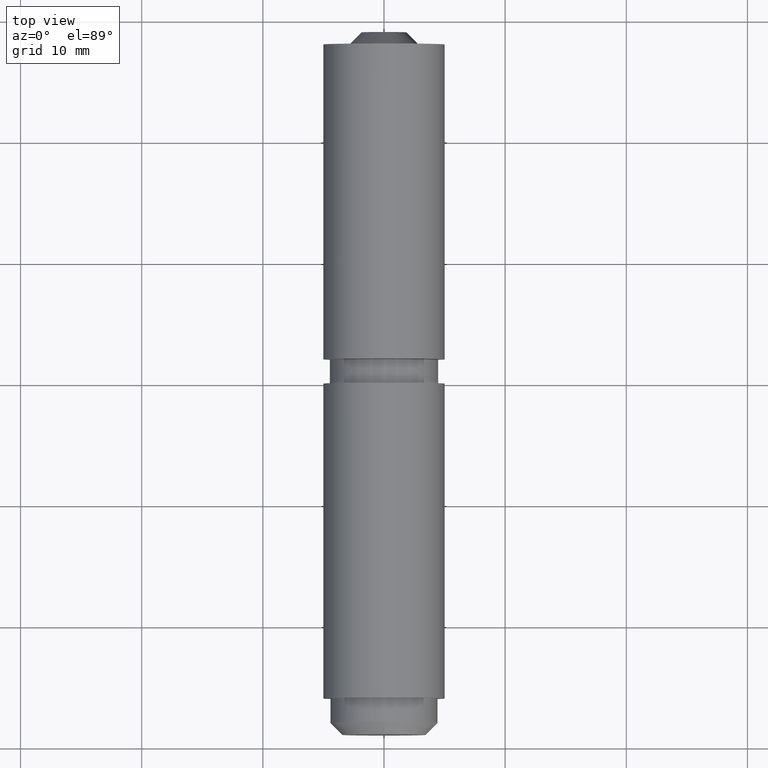
[diagram: clean part render]
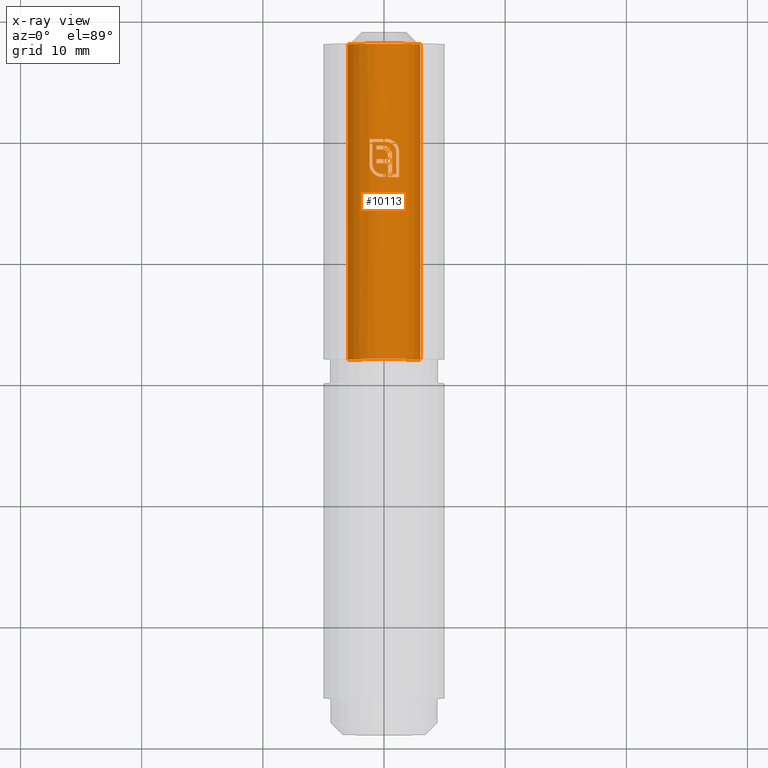
[diagram: x-ray — body ghosted, one internal face saturated and labeled with its STEP entity id]
A machine part, top view, then the same camera in x-ray: the body is ghosted and one INTERNAL B-rep face — a face not visible from any outside direction — is saturated and labeled: STEP entity #10113.
In plain terms, the highlighted cylindrical surface (edge-blend (fillet) strip) has radius 3 mm, axis along (-0, -1, -0).
Its self-contained STEP definition (entity closure, byte-faithful):
#47 = CARTESIAN_POINT ( 'NONE',  ( 0.6119098723146363383, 4.102196140564652538, 2.936931444239698763 ) ) ;
#59 = CARTESIAN_POINT ( 'NONE',  ( -0.8377652576694585296, 2.264291217246041654, 2.880880769550227427 ) ) ;
#89 = CARTESIAN_POINT ( 'NONE',  ( 0.6119098723146363383, 4.102196140564652538, 2.936931444239698763 ) ) ;
#104 = CARTESIAN_POINT ( 'NONE',  ( 0.6684136170824095391, 2.247203883359007115, 2.924589413319217179 ) ) ;
#215 = ORIENTED_EDGE ( 'NONE', *, *, #14262, .F. ) ;
#223 = EDGE_CURVE ( 'NONE', #4420, #1349, #5664, .T. ) ;
#251 = CARTESIAN_POINT ( 'NONE',  ( 1.820000000000000950, 12.99999999999999822, -2.384868969146941797 ) ) ;
#343 = CARTESIAN_POINT ( 'NONE',  ( -0.9123952173641571850, 2.798793251009787930, 2.857973957792982578 ) ) ;
#421 = ORIENTED_EDGE ( 'NONE', *, *, #2515, .F. ) ;
#465 = CIRCLE ( 'NONE', #12480, 3.000000000000000000 ) ;
#499 = VERTEX_POINT ( 'NONE', #89 ) ;
#524 = ORIENTED_EDGE ( 'NONE', *, *, #12877, .F. ) ;
#533 = CARTESIAN_POINT ( 'NONE',  ( 1.209693808437329432, 4.375083544272649227, 2.745294317523785388 ) ) ;
#579 = EDGE_CURVE ( 'NONE', #2757, #14552, #10061, .T. ) ;
#588 = CARTESIAN_POINT ( 'NONE',  ( 0.1829950824865384518, 5.146873330759728304, 2.994413598650952135 ) ) ;
#597 = CARTESIAN_POINT ( 'NONE',  ( 0.9872881831913479234, 4.784054523105190526, 2.833042408866309536 ) ) ;
#625 = CIRCLE ( 'NONE', #8288, 3.000000000000000000 ) ;
#646 = CARTESIAN_POINT ( 'NONE',  ( 0.1521748580677528551, 4.552941922689394794, 2.996137982899328644 ) ) ;
#681 = CARTESIAN_POINT ( 'NONE',  ( 0.9233765877532680300, 4.444806820686928894, 2.854445851953629543 ) ) ;
#701 = ORIENTED_EDGE ( 'NONE', *, *, #4432, .F. ) ;
#752 = ORIENTED_EDGE ( 'NONE', *, *, #12543, .F. ) ;
#793 = CARTESIAN_POINT ( 'NONE',  ( -0.1543570656487464332, 2.000416466809380900, 2.996133348181233114 ) ) ;
#803 = CARTESIAN_POINT ( 'NONE',  ( 0.6119098723146363383, 4.102196140564652538, 2.936931444239698763 ) ) ;
#901 = CARTESIAN_POINT ( 'NONE',  ( -0.2301047678639574212, 2.004140367723847849, 2.991269190449263871 ) ) ;
#916 = AXIS2_PLACEMENT_3D ( 'NONE', #9367, #8113, #7126 ) ;
#953 = CARTESIAN_POINT ( 'NONE',  ( -0.3547583019689007355, 2.024181050645404323, 2.978950578170799002 ) ) ;
#954 = DIRECTION ( 'NONE',  ( 0.000000000000000000, 1.000000000000000000, 0.000000000000000000 ) ) ;
#968 = EDGE_CURVE ( 'NONE', #13454, #8382, #3478, .T. ) ;
#981 = DIRECTION ( 'NONE',  ( 1.000000000000000000, -2.977941967093519056E-14, 2.842170943040400743E-14 ) ) ;
#993 = ORIENTED_EDGE ( 'NONE', *, *, #8486, .F. ) ;
#1035 = VERTEX_POINT ( 'NONE', #2330 ) ;
#1048 = CARTESIAN_POINT ( 'NONE',  ( 0.000000000000000000, 12.99999999999999822, 0.000000000000000000 ) ) ;
#1053 = CARTESIAN_POINT ( 'NONE',  ( 0.3238685990032738049, 3.812833101611519560, 2.982466953811836685 ) ) ;
#1136 = VERTEX_POINT ( 'NONE', #4998 ) ;
#1174 = EDGE_CURVE ( 'NONE', #3873, #5372, #10230, .T. ) ;
#1215 = CARTESIAN_POINT ( 'NONE',  ( 1.820000000000000950, 12.99999999999999822, -2.384868969146941797 ) ) ;
#1225 = CARTESIAN_POINT ( 'NONE',  ( 0.1001657293610717370, 12.99999999999999822, 2.998327338143979670 ) ) ;
#1349 = VERTEX_POINT ( 'NONE', #10482 ) ;
#1354 = CARTESIAN_POINT ( 'NONE',  ( -0.9514569797477718804, 3.011999671936735901, 2.845124215331875650 ) ) ;
#1374 = EDGE_CURVE ( 'NONE', #4502, #14170, #7379, .T. ) ;
#1388 = CARTESIAN_POINT ( 'NONE',  ( -0.6928129614139485470, 2.160522002181170187, 2.918905651181077587 ) ) ;
#1448 = CARTESIAN_POINT ( 'NONE',  ( 0.3216860923710732623, 12.99999999999999822, 2.982703146136910899 ) ) ;
#1567 = EDGE_CURVE ( 'NONE', #499, #12555, #13440, .T. ) ;
#1591 = CARTESIAN_POINT ( 'NONE',  ( 1.092833790849434772, 4.639623803867225504, 2.793870846259299157 ) ) ;
#1609 = VERTEX_POINT ( 'NONE', #9013 ) ;
#1632 = VERTEX_POINT ( 'NONE', #104 ) ;
#1636 = CARTESIAN_POINT ( 'NONE',  ( -0.5417831352854403093, 2.352657058122850753, 2.951023859527107884 ) ) ;
#1683 = CARTESIAN_POINT ( 'NONE',  ( 0.008756571312495988607, 4.259605376365418472, 3.000042498754934783 ) ) ;
#1742 = CARTESIAN_POINT ( 'NONE',  ( 0.000000000000000000, 4.288401663094819405, 0.000000000000000000 ) ) ;
#1767 = CARTESIAN_POINT ( 'NONE',  ( -0.9528586049474331299, 13.00000000000000533, 2.844654720520159774 ) ) ;
#1780 = CARTESIAN_POINT ( 'NONE',  ( -1.198671886259904396, 3.020436782565512512, 2.750125090109138970 ) ) ;
#1806 = EDGE_CURVE ( 'NONE', #1609, #4591, #12696, .T. ) ;
#1813 = DIRECTION ( 'NONE',  ( -0.000000000000000000, -1.000000000000000000, -0.000000000000000000 ) ) ;
#1818 = DIRECTION ( 'NONE',  ( 0.000000000000000000, 0.000000000000000000, -1.000000000000000000 ) ) ;
#1841 = CARTESIAN_POINT ( 'NONE',  ( -1.820000000000000062, -12.99999999999999822, -2.384868969146942685 ) ) ;
#1842 = CARTESIAN_POINT ( 'NONE',  ( -1.200062488306459452, 12.99999999999999822, 2.749518143995363317 ) ) ;
#1845 = EDGE_CURVE ( 'NONE', #3848, #13389, #7543, .T. ) ;
#1875 = CARTESIAN_POINT ( 'NONE',  ( -1.197289643114975100, 2.974364907740473019, 2.750732865563337182 ) ) ;
#1877 = AXIS2_PLACEMENT_3D ( 'NONE', #11584, #9403, #12716 ) ;
#1893 = CARTESIAN_POINT ( 'NONE',  ( 0.02696769636643687323, 4.253728910623685522, 2.999878788110060590 ) ) ;
#1912 = CARTESIAN_POINT ( 'NONE',  ( 0.000000000000000000, 2.247203883359007115, 0.000000000000000000 ) ) ;
#1931 = DIRECTION ( 'NONE',  ( 0.000000000000000000, 1.000000000000000000, 0.000000000000000000 ) ) ;
#1934 = CARTESIAN_POINT ( 'NONE',  ( -0.4282727018193733803, 2.043661984593277303, 2.969273057985124087 ) ) ;
#1979 = ORIENTED_EDGE ( 'NONE', *, *, #14460, .F. ) ;
#1989 = DIRECTION ( 'NONE',  ( 0.000000000000000000, 1.000000000000000000, 0.000000000000000000 ) ) ;
#2038 = CARTESIAN_POINT ( 'NONE',  ( 0.08624978100821671656, 4.572650278638377586, 2.998947377026147443 ) ) ;
#2039 = CARTESIAN_POINT ( 'NONE',  ( 0.6684136170824095391, 3.703459487146620877, 2.924589413319210962 ) ) ;
#2087 = CARTESIAN_POINT ( 'NONE',  ( -0.2549089394637050754, 4.609445667457169549, 2.989150620591322749 ) ) ;
#2129 = CARTESIAN_POINT ( 'NONE',  ( 0.5563662867071075269, 4.229933426002630448, 2.947993934956233630 ) ) ;
#2148 = DIRECTION ( 'NONE',  ( -0.000000000000000000, -1.000000000000000000, -0.000000000000000000 ) ) ;
#2153 = VERTEX_POINT ( 'NONE', #14610 ) ;
#2156 = CARTESIAN_POINT ( 'NONE',  ( -0.2549089394637050754, 4.609445667457169549, 2.989150620591322749 ) ) ;
#2166 = CARTESIAN_POINT ( 'NONE',  ( 0.7251240748225272759, 4.694632925975165350, 2.911316723034566678 ) ) ;
#2167 = CARTESIAN_POINT ( 'NONE',  ( 0.6310258041582972321, 5.051248535474863743, 2.933195452423586591 ) ) ;
#2207 = VERTEX_POINT ( 'NONE', #14563 ) ;
#2246 = EDGE_CURVE ( 'NONE', #12722, #9822, #14113, .T. ) ;
#2274 = CARTESIAN_POINT ( 'NONE',  ( 0.4385461099589678668, 4.384072776394798865, 2.967773122972821476 ) ) ;
#2329 = CARTESIAN_POINT ( 'NONE',  ( -0.9528586049474511155, 3.066508182491718859, 2.844654720520159774 ) ) ;
#2330 = CARTESIAN_POINT ( 'NONE',  ( 1.253355793030608956, 1.999999999999994893, 2.725637403631783862 ) ) ;
#2337 = CARTESIAN_POINT ( 'NONE',  ( -0.9616355343674479750, 2.393159377310473790, 2.841836575667926912 ) ) ;
#2376 = DIRECTION ( 'NONE',  ( -1.000000000000000000, 1.546795099412652887E-14, -1.243449787580175325E-14 ) ) ;
#2395 = LINE ( 'NONE', #1448, #9107 ) ;
#2448 = VECTOR ( 'NONE', #6004, 1000.000000000000000 ) ;
#2463 = FACE_BOUND ( 'NONE', #3729, .T. ) ;
#2515 = EDGE_CURVE ( 'NONE', #13152, #4480, #3083, .T. ) ;
#2516 = ORIENTED_EDGE ( 'NONE', *, *, #6592, .F. ) ;
#2570 = AXIS2_PLACEMENT_3D ( 'NONE', #11630, #4843, #3805 ) ;
#2591 = ORIENTED_EDGE ( 'NONE', *, *, #968, .F. ) ;
#2604 = EDGE_CURVE ( 'NONE', #3915, #5309, #465, .T. ) ;
#2646 = CARTESIAN_POINT ( 'NONE',  ( -1.200062488306459452, 5.146873330759742515, 2.749518143995363317 ) ) ;
#2653 = AXIS2_PLACEMENT_3D ( 'NONE', #10962, #12072, #4081 ) ;
#2656 = CARTESIAN_POINT ( 'NONE',  ( -1.820000000000000062, 12.99999999999999822, -2.384868969146942685 ) ) ;
#2713 = ORIENTED_EDGE ( 'NONE', *, *, #12069, .F. ) ;
#2727 = ORIENTED_EDGE ( 'NONE', *, *, #5338, .F. ) ;
#2757 = VERTEX_POINT ( 'NONE', #2646 ) ;
#2777 = VECTOR ( 'NONE', #1989, 1000.000000000000000 ) ;
#2809 = CARTESIAN_POINT ( 'NONE',  ( 1.252502070515181032, 4.130394476076738819, 2.726029978982756230 ) ) ;
#2865 = CARTESIAN_POINT ( 'NONE',  ( -0.1290596897536647192, 2.247203883359007115, 2.997222647131954965 ) ) ;
#2877 = ORIENTED_EDGE ( 'NONE', *, *, #10317, .F. ) ;
#2912 = CARTESIAN_POINT ( 'NONE',  ( -1.186621281242149273, 2.882778280774473512, 2.755351832725525973 ) ) ;
#2962 = VERTEX_POINT ( 'NONE', #251 ) ;
#2967 = DIRECTION ( 'NONE',  ( -0.000000000000000000, -1.000000000000000000, -0.000000000000000000 ) ) ;
#3037 = DIRECTION ( 'NONE',  ( 0.000000000000000000, 1.000000000000000000, 0.000000000000000000 ) ) ;
#3041 = DIRECTION ( 'NONE',  ( 2.979806390163168756E-14, 1.000000000000000000, 0.000000000000000000 ) ) ;
#3048 = CARTESIAN_POINT ( 'NONE',  ( 0.3216860923710733178, 2.247203883359007115, 2.982703146136910899 ) ) ;
#3083 = B_SPLINE_CURVE_WITH_KNOTS ( 'NONE', 3,
 ( #533, #3959, #9585, #9771, #2809, #7394 ),
 .UNSPECIFIED., .F., .F.,
 ( 4, 2, 4 ),
 ( 0.000000000000000000, 0.0001496456854292651118, 0.0002992913708585302236 ),
 .UNSPECIFIED. ) ;
#3159 = CARTESIAN_POINT ( 'NONE',  ( 1.141600833241961377, 4.556813562494748560, 2.774382490623152009 ) ) ;
#3164 = CARTESIAN_POINT ( 'NONE',  ( 0.1521748580677528551, 4.552941922689394794, 2.996137982899328644 ) ) ;
#3227 = EDGE_CURVE ( 'NONE', #5372, #499, #10130, .T. ) ;
#3260 = CARTESIAN_POINT ( 'NONE',  ( -0.2552406976392543325, 2.007060110965222410, 2.989227564943450766 ) ) ;
#3312 = CARTESIAN_POINT ( 'NONE',  ( 0.5121080073849872960, 4.300713408647000691, 2.956020603595695295 ) ) ;
#3393 = ORIENTED_EDGE ( 'NONE', *, *, #1374, .F. ) ;
#3446 = CARTESIAN_POINT ( 'NONE',  ( 1.209693808437329432, 4.375083544272649227, 2.745294317523785388 ) ) ;
#3458 = CARTESIAN_POINT ( 'NONE',  ( 0.5925705449945325443, 4.154870999267416209, 2.940917949205164472 ) ) ;
#3478 = B_SPLINE_CURVE_WITH_KNOTS ( 'NONE', 3,
 ( #12219, #14619, #12269, #1053, #14574, #7810, #6591, #12169, #11057, #8809 ),
 .UNSPECIFIED., .F., .F.,
 ( 4, 3, 3, 4 ),
 ( 0.000000000000000000, 5.738907785576576162E-05, 0.0001148596289498291813, 0.0002293533855962741601 ),
 .UNSPECIFIED. ) ;
#3554 = CARTESIAN_POINT ( 'NONE',  ( -0.6279620725327086372, 13.00000000000000533, 2.933541142622755782 ) ) ;
#3559 = VECTOR ( 'NONE', #1931, 1000.000000000000000 ) ;
#3592 = VECTOR ( 'NONE', #1813, 1000.000000000000000 ) ;
#3600 = VERTEX_POINT ( 'NONE', #9894 ) ;
#3615 = CARTESIAN_POINT ( 'NONE',  ( -0.9479532311685632262, 2.957700599156627419, 2.846314065036802621 ) ) ;
#3648 = ORIENTED_EDGE ( 'NONE', *, *, #11813, .F. ) ;
#3652 = CARTESIAN_POINT ( 'NONE',  ( 0.3255386204234211878, 2.247203883359007115, 2.982285131675510126 ) ) ;
#3653 = CARTESIAN_POINT ( 'NONE',  ( 0.000000000000000000, 5.146873330759728304, 0.000000000000000000 ) ) ;
#3664 = CARTESIAN_POINT ( 'NONE',  ( 0.3255386204234211878, 3.755468615853317704, 2.982285131675509682 ) ) ;
#3710 = B_SPLINE_CURVE_WITH_KNOTS ( 'NONE', 3,
 ( #2087, #5650, #6789, #6692, #12220, #2038, #9971, #3164 ),
 .UNSPECIFIED., .F., .F.,
 ( 4, 2, 2, 4 ),
 ( 5.421010862427515550E-20, 0.0002067635739661120777, 0.0003101453609491679132, 0.0004135271479322237217 ),
 .UNSPECIFIED. ) ;
#3729 = EDGE_LOOP ( 'NONE', ( #12485, #11015, #13125, #4449, #752, #12680, #3828, #7457, #7937, #8515, #8316, #7732, #14035, #3648, #7271, #6189, #3393, #9521, #6929, #8537, #10475, #9366, #2713, #6589, #1979, #4893, #2516, #4725, #8851, #2591, #11328, #2727, #993, #4464, #8722, #2877, #701, #7807, #524, #421, #215, #13257 ) ) ;
#3805 = DIRECTION ( 'NONE',  ( 0.000000000000000000, 0.000000000000000000, -1.000000000000000000 ) ) ;
#3806 = CIRCLE ( 'NONE', #916, 3.000000000000000000 ) ;
#3809 = EDGE_CURVE ( 'NONE', #14066, #8850, #625, .T. ) ;
#3828 = ORIENTED_EDGE ( 'NONE', *, *, #14286, .F. ) ;
#3848 = VERTEX_POINT ( 'NONE', #4093 ) ;
#3855 = DIRECTION ( 'NONE',  ( 1.000000000000000000, -2.139492287038062188E-14, 7.105427357601001859E-15 ) ) ;
#3864 = CARTESIAN_POINT ( 'NONE',  ( -0.7101493376495157106, 2.485418534595863704, 2.914736337687501955 ) ) ;
#3873 = VERTEX_POINT ( 'NONE', #6556 ) ;
#3876 = CARTESIAN_POINT ( 'NONE',  ( 0.1829950824865384518, 4.899669447400730071, 2.994413598650951691 ) ) ;
#3915 = VERTEX_POINT ( 'NONE', #13339 ) ;
#3929 = VECTOR ( 'NONE', #14684, 1000.000000000000000 ) ;
#3959 = CARTESIAN_POINT ( 'NONE',  ( 1.223372317538443443, 4.327397774661563723, 2.739266982799545502 ) ) ;
#4023 = CARTESIAN_POINT ( 'NONE',  ( 0.4385461099589678668, 4.384072776394798865, 2.967773122972821476 ) ) ;
#4076 = DIRECTION ( 'NONE',  ( -0.000000000000000000, -1.000000000000000000, -0.000000000000000000 ) ) ;
#4081 = DIRECTION ( 'NONE',  ( 0.000000000000000000, 0.000000000000000000, -1.000000000000000000 ) ) ;
#4093 = CARTESIAN_POINT ( 'NONE',  ( -0.1984051946959317081, 4.288401663094819405, 2.993432040103410685 ) ) ;
#4123 = VERTEX_POINT ( 'NONE', #12546 ) ;
#4157 = DIRECTION ( 'NONE',  ( 0.000000000000000000, 0.000000000000000000, 1.000000000000000000 ) ) ;
#4161 = CARTESIAN_POINT ( 'NONE',  ( 1.006151909671600730, 2.247203883359007115, 2.826244563845137669 ) ) ;
#4198 = CARTESIAN_POINT ( 'NONE',  ( 1.004760314566674140, 4.134661926586784553, 2.826739976057592418 ) ) ;
#4244 = DIRECTION ( 'NONE',  ( -0.000000000000000000, -1.000000000000000000, -0.000000000000000000 ) ) ;
#4411 = CARTESIAN_POINT ( 'NONE',  ( 0.7114335136669645010, 5.008182320875207871, 2.914423160014941061 ) ) ;
#4415 = CARTESIAN_POINT ( 'NONE',  ( 1.180749293169532255, 4.468184987503099670, 2.757948834444669206 ) ) ;
#4420 = VERTEX_POINT ( 'NONE', #5994 ) ;
#4423 = EDGE_CURVE ( 'NONE', #1035, #1136, #3806, .T. ) ;
#4432 = EDGE_CURVE ( 'NONE', #1136, #6776, #2395, .T. ) ;
#4449 = ORIENTED_EDGE ( 'NONE', *, *, #6500, .F. ) ;
#4464 = ORIENTED_EDGE ( 'NONE', *, *, #2246, .F. ) ;
#4468 = CARTESIAN_POINT ( 'NONE',  ( 0.4578925796591522546, 4.364113353764206948, 2.964914306386479570 ) ) ;
#4480 = VERTEX_POINT ( 'NONE', #6291 ) ;
#4502 = VERTEX_POINT ( 'NONE', #4161 ) ;
#4591 = VERTEX_POINT ( 'NONE', #1841 ) ;
#4668 = B_SPLINE_CURVE_WITH_KNOTS ( 'NONE', 3,
 ( #11194, #12158, #3159, #4415, #12312, #5538 ),
 .UNSPECIFIED., .F., .F.,
 ( 4, 2, 4 ),
 ( 0.000000000000000000, 0.0001469652186039428494, 0.0002939304372078856988 ),
 .UNSPECIFIED. ) ;
#4694 = CARTESIAN_POINT ( 'NONE',  ( 0.6851026435369763634, 4.730407971658794786, 2.921080204366434341 ) ) ;
#4698 = LINE ( 'NONE', #3554, #11245 ) ;
#4725 = ORIENTED_EDGE ( 'NONE', *, *, #223, .F. ) ;
#4728 = LINE ( 'NONE', #12822, #7891 ) ;
#4765 = CARTESIAN_POINT ( 'NONE',  ( -0.9272212539379542928, 2.850566093122369971, 2.853135088206475434 ) ) ;
#4834 = CARTESIAN_POINT ( 'NONE',  ( -0.5209688137775781991, 2.072450519546090053, 2.954763493176401301 ) ) ;
#4843 = DIRECTION ( 'NONE',  ( -0.000000000000000000, 1.000000000000000000, 0.000000000000000000 ) ) ;
#4846 = CARTESIAN_POINT ( 'NONE',  ( -0.8705490543984857332, 2.700089632364623959, 2.870997129914582668 ) ) ;
#4893 = ORIENTED_EDGE ( 'NONE', *, *, #1845, .F. ) ;
#4949 = DIRECTION ( 'NONE',  ( -0.000000000000000000, -1.000000000000000000, -0.000000000000000000 ) ) ;
#4962 = CARTESIAN_POINT ( 'NONE',  ( 0.000000000000000000, 4.899669447400730071, 0.000000000000000000 ) ) ;
#4972 = CARTESIAN_POINT ( 'NONE',  ( -0.6279620725327543784, 4.609445667457169549, 2.933541142622755782 ) ) ;
#4992 = CARTESIAN_POINT ( 'NONE',  ( -0.6714124317102144746, 2.448279520953268840, 2.924174237006110566 ) ) ;
#4998 = CARTESIAN_POINT ( 'NONE',  ( 0.3216860923710733178, 1.999999999999994893, 2.982703146136911343 ) ) ;
#5038 = CARTESIAN_POINT ( 'NONE',  ( -0.3438841838329733114, 2.271030925239722720, 2.980704209424413609 ) ) ;
#5043 = VERTEX_POINT ( 'NONE', #8287 ) ;
#5178 = CARTESIAN_POINT ( 'NONE',  ( -1.177346841308212433, 2.837869168361856875, 2.759350323595036958 ) ) ;
#5223 = CARTESIAN_POINT ( 'NONE',  ( -1.082901955422192808, 2.581865651234309667, 2.797830095093282843 ) ) ;
#5246 = CARTESIAN_POINT ( 'NONE',  ( -0.6928129614139485470, 2.160522002181170187, 2.918905651181077587 ) ) ;
#5285 = B_SPLINE_CURVE_WITH_KNOTS ( 'NONE', 3,
 ( #9500, #6131, #6244, #12919, #597, #11918, #10708, #1591 ),
 .UNSPECIFIED., .F., .F.,
 ( 4, 2, 2, 4 ),
 ( 0.000000000000000000, 0.0002738938893260503982, 0.0004108408339890755974, 0.0005477877786521007965 ),
 .UNSPECIFIED. ) ;
#5291 = CARTESIAN_POINT ( 'NONE',  ( -0.7302897287612164501, 2.185016205109694631, 2.910010403004907875 ) ) ;
#5309 = VERTEX_POINT ( 'NONE', #13167 ) ;
#5338 = EDGE_CURVE ( 'NONE', #10121, #5043, #9080, .T. ) ;
#5354 = VERTEX_POINT ( 'NONE', #11937 ) ;
#5364 = AXIS2_PLACEMENT_3D ( 'NONE', #9143, #8099, #2376 ) ;
#5372 = VERTEX_POINT ( 'NONE', #9751 ) ;
#5376 = CARTESIAN_POINT ( 'NONE',  ( -0.06557531111153956649, 4.278026302705921324, 2.999343149999750935 ) ) ;
#5405 = CARTESIAN_POINT ( 'NONE',  ( 0.2098489267423048754, 4.125547565194677802, 2.992740307606163164 ) ) ;
#5421 = CARTESIAN_POINT ( 'NONE',  ( 0.5035495202727986452, 5.100909725981725096, 2.957784275785524830 ) ) ;
#5457 = FACE_OUTER_BOUND ( 'NONE', #8929, .T. ) ;
#5476 = CARTESIAN_POINT ( 'NONE',  ( -0.1604060654722307966, 4.287856023375371528, 2.995950628977620323 ) ) ;
#5538 = CARTESIAN_POINT ( 'NONE',  ( 1.209693808437329432, 4.375083544272649227, 2.745294317523785388 ) ) ;
#5542 = CARTESIAN_POINT ( 'NONE',  ( 0.6022488441144143723, 4.128508529876934396, 2.938944320142547806 ) ) ;
#5638 = EDGE_CURVE ( 'NONE', #9371, #4123, #8031, .T. ) ;
#5643 = CARTESIAN_POINT ( 'NONE',  ( 0.5276107165807987220, 4.277399984402155297, 2.953276595647525316 ) ) ;
#5650 = CARTESIAN_POINT ( 'NONE',  ( -0.1862242024850685185, 4.608670817835442080, 2.995007921103367110 ) ) ;
#5663 = CARTESIAN_POINT ( 'NONE',  ( 0.05685022120099954279, 4.242006757540709216, 2.999610156304139075 ) ) ;
#5664 = B_SPLINE_CURVE_WITH_KNOTS ( 'NONE', 3,
 ( #10594, #11120, #7726, #12431, #5663, #1893 ),
 .UNSPECIFIED., .F., .F.,
 ( 4, 2, 4 ),
 ( 0.000000000000000000, 9.651774584029350823E-05, 0.0001930354916805869622 ),
 .UNSPECIFIED. ) ;
#5669 = VERTEX_POINT ( 'NONE', #2656 ) ;
#5700 = CARTESIAN_POINT ( 'NONE',  ( -1.061371478421925030, 2.541922279363638459, 2.805974088403607514 ) ) ;
#5712 = CARTESIAN_POINT ( 'NONE',  ( -0.9528586049474511155, 3.066508182491718859, 2.844654720520159774 ) ) ;
#5771 = CARTESIAN_POINT ( 'NONE',  ( 0.2920374603895630194, 4.894792077649273487, 2.986235469212906946 ) ) ;
#5793 = CIRCLE ( 'NONE', #10374, 3.000000000000000000 ) ;
#5907 = VERTEX_POINT ( 'NONE', #9241 ) ;
#5965 = CARTESIAN_POINT ( 'NONE',  ( 0.1829950824865384518, 4.899669447400730071, 2.994413598650951691 ) ) ;
#5986 = CARTESIAN_POINT ( 'NONE',  ( -0.7473278404402844410, 2.524267836486113303, 2.905678129303345347 ) ) ;
#5994 = CARTESIAN_POINT ( 'NONE',  ( 0.1868476105388863495, 4.149710653210285649, 2.994175674611613047 ) ) ;
#6004 = DIRECTION ( 'NONE',  ( 0.000000000000000000, 1.000000000000000000, 0.000000000000000000 ) ) ;
#6040 = VERTEX_POINT ( 'NONE', #12941 ) ;
#6060 = CIRCLE ( 'NONE', #2570, 3.000000000000000000 ) ;
#6107 = EDGE_CURVE ( 'NONE', #5907, #9371, #13511, .T. ) ;
#6131 = CARTESIAN_POINT ( 'NONE',  ( 0.7872158907695148145, 4.960415367360521799, 2.895924088378471151 ) ) ;
#6134 = CARTESIAN_POINT ( 'NONE',  ( 0.2573304543014711121, 4.513186783589111961, 2.989338932855853948 ) ) ;
#6182 = CARTESIAN_POINT ( 'NONE',  ( 0.02696769636643687323, 4.253728910623685522, 2.999878788110060590 ) ) ;
#6189 = ORIENTED_EDGE ( 'NONE', *, *, #14647, .F. ) ;
#6194 = CARTESIAN_POINT ( 'NONE',  ( -0.6279620725327542674, 3.144200831547420805, 2.933541142622746456 ) ) ;
#6226 = EDGE_CURVE ( 'NONE', #5354, #7498, #7179, .T. ) ;
#6232 = CARTESIAN_POINT ( 'NONE',  ( -0.009489194966240692766, 4.265485006221549469, 3.000042538743693754 ) ) ;
#6238 = CARTESIAN_POINT ( 'NONE',  ( -0.1834504257179344344, 2.248697005663758297, 2.994880595060609885 ) ) ;
#6244 = CARTESIAN_POINT ( 'NONE',  ( 0.8607794669254750231, 4.909761583435052756, 2.874649816877568487 ) ) ;
#6291 = CARTESIAN_POINT ( 'NONE',  ( 1.253355793030608956, 4.080365148268018771, 2.725637403631783862 ) ) ;
#6371 = CARTESIAN_POINT ( 'NONE',  ( -1.140137172938805232, 2.705679346793887330, 2.774969881004483163 ) ) ;
#6419 = CARTESIAN_POINT ( 'NONE',  ( 0.7634426423736646594, 4.656960180102795555, 2.901233415601977228 ) ) ;
#6439 = CARTESIAN_POINT ( 'NONE',  ( -0.4039244964356200618, 2.036741694247893975, 2.972784918127495235 ) ) ;
#6456 = CARTESIAN_POINT ( 'NONE',  ( -0.6279620725327542674, 3.460750219848686360, 2.933541142622734466 ) ) ;
#6478 = EDGE_CURVE ( 'NONE', #1632, #4502, #6060, .T. ) ;
#6500 = EDGE_CURVE ( 'NONE', #2153, #7001, #10625, .T. ) ;
#6519 = CARTESIAN_POINT ( 'NONE',  ( -0.1222017945790075805, 4.286266852409817751, 2.997747026893381239 ) ) ;
#6534 = CARTESIAN_POINT ( 'NONE',  ( -0.1796627550271727158, 2.000833525309735794, 2.994722003794663134 ) ) ;
#6540 = B_SPLINE_CURVE_WITH_KNOTS ( 'NONE', 3,
 ( #13707, #13794, #4834, #12755, #8139, #1388 ),
 .UNSPECIFIED., .F., .F.,
 ( 4, 2, 4 ),
 ( 0.000000000000000000, 0.0001470962411515035944, 0.0002941924823030071887 ),
 .UNSPECIFIED. ) ;
#6556 = CARTESIAN_POINT ( 'NONE',  ( 0.1521748580677528551, 4.552941922689394794, 2.996137982899328644 ) ) ;
#6583 = CARTESIAN_POINT ( 'NONE',  ( -0.2802158620709034875, 2.010674124201590640, 2.986884509090343975 ) ) ;
#6589 = ORIENTED_EDGE ( 'NONE', *, *, #3809, .F. ) ;
#6591 = CARTESIAN_POINT ( 'NONE',  ( 0.3173026046375028164, 3.869897511232810228, 2.983172649561244949 ) ) ;
#6592 = EDGE_CURVE ( 'NONE', #1349, #3848, #14024, .T. ) ;
#6636 = CARTESIAN_POINT ( 'NONE',  ( 0.5420563399251611125, 4.253554725167828288, 2.950622802790445309 ) ) ;
#6641 = CARTESIAN_POINT ( 'NONE',  ( 0.6473353711517614295, 3.972065662730378754, 2.929340536477958779 ) ) ;
#6669 = CARTESIAN_POINT ( 'NONE',  ( 0.4140622037154995105, 5.124315569487898792, 2.971632957298956157 ) ) ;
#6682 = DIRECTION ( 'NONE',  ( 0.000000000000000000, 0.000000000000000000, 1.000000000000000000 ) ) ;
#6692 = CARTESIAN_POINT ( 'NONE',  ( -0.01481381517686389954, 4.592512690051532509, 3.000158134944406196 ) ) ;
#6702 = CIRCLE ( 'NONE', #14355, 3.000000000000000000 ) ;
#6776 = VERTEX_POINT ( 'NONE', #3048 ) ;
#6789 = CARTESIAN_POINT ( 'NONE',  ( -0.1173406423964038908, 4.605914066232098314, 2.998483668258784096 ) ) ;
#6832 = B_SPLINE_CURVE_WITH_KNOTS ( 'NONE', 3,
 ( #3864, #4992, #8505, #1636, #9643, #12917, #5038, #9547, #6238, #2865 ),
 .UNSPECIFIED., .F., .F.,
 ( 4, 2, 2, 2, 4 ),
 ( 0.000000000000000000, 0.0001630558417543754343, 0.0003261116835087508685, 0.0004891675252631262757, 0.0006522233670175017371 ),
 .UNSPECIFIED. ) ;
#6851 = LINE ( 'NONE', #7610, #2777 ) ;
#6929 = ORIENTED_EDGE ( 'NONE', *, *, #10404, .F. ) ;
#6955 = EDGE_CURVE ( 'NONE', #5309, #7245, #12427, .T. ) ;
#7001 = VERTEX_POINT ( 'NONE', #11372 ) ;
#7043 = ORIENTED_EDGE ( 'NONE', *, *, #10227, .T. ) ;
#7126 = DIRECTION ( 'NONE',  ( -1.776356839400250465E-15, 0.000000000000000000, 1.000000000000000000 ) ) ;
#7179 = B_SPLINE_CURVE_WITH_KNOTS ( 'NONE', 3,
 ( #14602, #2166, #4694, #12603, #10293, #10488, #12651, #5771, #12743, #5965 ),
 .UNSPECIFIED., .F., .F.,
 ( 4, 2, 2, 2, 4 ),
 ( 0.000000000000000000, 0.0001635834676594985243, 0.0003271669353189970487, 0.0004907504029784956001, 0.0006543338706379940974 ),
 .UNSPECIFIED. ) ;
#7245 = VERTEX_POINT ( 'NONE', #9491 ) ;
#7255 = DIRECTION ( 'NONE',  ( 0.000000000000000000, 1.000000000000000000, 0.000000000000000000 ) ) ;
#7271 = ORIENTED_EDGE ( 'NONE', *, *, #6226, .F. ) ;
#7319 = DIRECTION ( 'NONE',  ( 0.000000000000000000, 1.000000000000000000, 0.000000000000000000 ) ) ;
#7328 = VERTEX_POINT ( 'NONE', #11134 ) ;
#7379 = LINE ( 'NONE', #11606, #2448 ) ;
#7394 = CARTESIAN_POINT ( 'NONE',  ( 1.253355793030608956, 4.080365148268018771, 2.725637403631783862 ) ) ;
#7442 = CARTESIAN_POINT ( 'NONE',  ( 1.001255543571553774, 4.188751955888505130, 2.828003774603398579 ) ) ;
#7457 = ORIENTED_EDGE ( 'NONE', *, *, #10928, .F. ) ;
#7498 = VERTEX_POINT ( 'NONE', #3876 ) ;
#7522 = EDGE_CURVE ( 'NONE', #7001, #2757, #13124, .T. ) ;
#7543 = CIRCLE ( 'NONE', #8317, 3.000000000000000000 ) ;
#7546 = AXIS2_PLACEMENT_3D ( 'NONE', #12009, #2967, #10993 ) ;
#7554 = LINE ( 'NONE', #14354, #11309 ) ;
#7559 = B_SPLINE_CURVE_WITH_KNOTS ( 'NONE', 3,
 ( #12299, #7784, #7640, #13452, #6669, #5421, #13297, #2167, #12342, #8788 ),
 .UNSPECIFIED., .F., .F.,
 ( 4, 2, 2, 2, 4 ),
 ( 7.589415207398518520E-19, 0.0001401835325530544941, 0.0002803670651061082294, 0.0004205505976591619646, 0.0005607341302122156998 ),
 .UNSPECIFIED. ) ;
#7569 = CARTESIAN_POINT ( 'NONE',  ( 0.2908658679522876933, 3.980841506915688832, 2.985866213824785564 ) ) ;
#7588 = CARTESIAN_POINT ( 'NONE',  ( 0.8969012652114304318, 4.492043029554376510, 2.862964911513018684 ) ) ;
#7610 = CARTESIAN_POINT ( 'NONE',  ( 0.3255386204234001490, 12.99999999999999822, 2.982285131675512346 ) ) ;
#7640 = CARTESIAN_POINT ( 'NONE',  ( 0.2762141924006784044, 5.144100407033747047, 2.987619173918951709 ) ) ;
#7702 = CARTESIAN_POINT ( 'NONE',  ( -0.3301635263623418082, 2.018597105524553736, 2.981879529357644998 ) ) ;
#7726 = CARTESIAN_POINT ( 'NONE',  ( 0.1402007070271311662, 4.194093402014171801, 2.996844790076258036 ) ) ;
#7732 = ORIENTED_EDGE ( 'NONE', *, *, #5638, .F. ) ;
#7741 = CARTESIAN_POINT ( 'NONE',  ( -0.08452702658547026071, 4.280784244640047476, 2.998808960533604129 ) ) ;
#7784 = CARTESIAN_POINT ( 'NONE',  ( 0.2296451330848946204, 5.145484690859884580, 2.991562713301949561 ) ) ;
#7807 = ORIENTED_EDGE ( 'NONE', *, *, #4423, .F. ) ;
#7810 = CARTESIAN_POINT ( 'NONE',  ( 0.3201258543031451076, 3.850960748323334570, 2.982872357027864130 ) ) ;
#7854 = EDGE_CURVE ( 'NONE', #14552, #11114, #7559, .T. ) ;
#7891 = VECTOR ( 'NONE', #4949, 1000.000000000000000 ) ;
#7937 = ORIENTED_EDGE ( 'NONE', *, *, #6955, .F. ) ;
#8031 = B_SPLINE_CURVE_WITH_KNOTS ( 'NONE', 3,
 ( #2329, #1354, #3615, #4765, #343, #4846, #13808, #12767, #5986, #8255 ),
 .UNSPECIFIED., .F., .F.,
 ( 4, 2, 2, 2, 4 ),
 ( 0.000000000000000000, 0.0001631702166246174119, 0.0003263404332492348238, 0.0004895106498738522900, 0.0006526808664984696477 ),
 .UNSPECIFIED. ) ;
#8070 = DIRECTION ( 'NONE',  ( 1.000000000000000000, 1.013078509970455343E-12, 0.000000000000000000 ) ) ;
#8099 = DIRECTION ( 'NONE',  ( -1.546769729245006211E-14, -1.000000000000000000, -0.000000000000000000 ) ) ;
#8113 = DIRECTION ( 'NONE',  ( -0.000000000000000000, -1.000000000000000000, -0.000000000000000000 ) ) ;
#8139 = CARTESIAN_POINT ( 'NONE',  ( -0.6516674629949781306, 2.135443854147028198, 2.928671686132213292 ) ) ;
#8155 = CARTESIAN_POINT ( 'NONE',  ( 0.3255386204234211878, 3.144200831547407038, 2.982285131675512346 ) ) ;
#8255 = CARTESIAN_POINT ( 'NONE',  ( -0.7101493376495157106, 2.485418534595863704, 2.914736337687501955 ) ) ;
#8287 = CARTESIAN_POINT ( 'NONE',  ( 0.3255386204234211878, 3.460750219848686360, 2.982285131675510126 ) ) ;
#8288 = AXIS2_PLACEMENT_3D ( 'NONE', #9675, #3037, #1818 ) ;
#8316 = ORIENTED_EDGE ( 'NONE', *, *, #13527, .F. ) ;
#8317 = AXIS2_PLACEMENT_3D ( 'NONE', #1742, #9645, #4157 ) ;
#8382 = VERTEX_POINT ( 'NONE', #7569 ) ;
#8421 = DIRECTION ( 'NONE',  ( 0.000000000000000000, -1.000000000000000000, -0.000000000000000000 ) ) ;
#8486 = EDGE_CURVE ( 'NONE', #9822, #10121, #9586, .T. ) ;
#8500 = CARTESIAN_POINT ( 'NONE',  ( -1.154051615107620998, 2.749156704507863314, 2.769174003693151587 ) ) ;
#8505 = CARTESIAN_POINT ( 'NONE',  ( -0.6310392436089856671, 2.412990324376912188, 2.933233754442935215 ) ) ;
#8515 = ORIENTED_EDGE ( 'NONE', *, *, #2604, .F. ) ;
#8537 = ORIENTED_EDGE ( 'NONE', *, *, #1567, .F. ) ;
#8675 = CARTESIAN_POINT ( 'NONE',  ( 0.2656368739045023020, 4.042753128711588317, 2.988268106880633379 ) ) ;
#8722 = ORIENTED_EDGE ( 'NONE', *, *, #11885, .F. ) ;
#8726 = CARTESIAN_POINT ( 'NONE',  ( 0.2794184030982425071, 4.012237172004239127, 2.986981359836755168 ) ) ;
#8788 = CARTESIAN_POINT ( 'NONE',  ( 0.7114335136669645010, 5.008182320875207871, 2.914423160014941061 ) ) ;
#8809 = CARTESIAN_POINT ( 'NONE',  ( 0.2908658679522876933, 3.980841506915688832, 2.985866213824785564 ) ) ;
#8811 = CARTESIAN_POINT ( 'NONE',  ( 0.6669535924427415496, 3.770857256890181475, 2.924923101304946815 ) ) ;
#8823 = CARTESIAN_POINT ( 'NONE',  ( 0.1868476105388863495, 4.149710653210285649, 2.994175674611613047 ) ) ;
#8847 = CARTESIAN_POINT ( 'NONE',  ( -0.3795127285966794495, 2.029801242591809718, 2.976002614407641467 ) ) ;
#8850 = VERTEX_POINT ( 'NONE', #2156 ) ;
#8851 = ORIENTED_EDGE ( 'NONE', *, *, #10109, .F. ) ;
#8909 = B_SPLINE_CURVE_WITH_KNOTS ( 'NONE', 3,
 ( #13228, #8726, #8675, #14529, #5405, #8823 ),
 .UNSPECIFIED., .F., .F.,
 ( 4, 2, 4 ),
 ( 0.000000000000000000, 0.0001002667209062406330, 0.0002005334418124812661 ),
 .UNSPECIFIED. ) ;
#8929 = EDGE_LOOP ( 'NONE', ( #13510, #14585, #9313, #7043 ) ) ;
#8964 = CARTESIAN_POINT ( 'NONE',  ( -1.014309764540480385, 2.465543075405530971, 2.823464844002845808 ) ) ;
#8989 = DIRECTION ( 'NONE',  ( -0.000000000000000000, -1.000000000000000000, -0.000000000000000000 ) ) ;
#9013 = CARTESIAN_POINT ( 'NONE',  ( 1.820000000000000950, -12.99999999999999822, -2.384868969146941797 ) ) ;
#9080 = CIRCLE ( 'NONE', #2653, 3.000000000000000000 ) ;
#9104 = CARTESIAN_POINT ( 'NONE',  ( -0.7676281658635484284, 2.209424419888549096, 2.900357156333553288 ) ) ;
#9107 = VECTOR ( 'NONE', #7319, 1000.000000000000000 ) ;
#9136 = EDGE_CURVE ( 'NONE', #11114, #7328, #5285, .T. ) ;
#9143 = CARTESIAN_POINT ( 'NONE',  ( 0.000000000000000000, 3.144200831547407038, 0.000000000000000000 ) ) ;
#9241 = CARTESIAN_POINT ( 'NONE',  ( -0.9528586049474511155, 4.899669447400730071, 2.844654720520154445 ) ) ;
#9313 = ORIENTED_EDGE ( 'NONE', *, *, #14370, .F. ) ;
#9322 = CARTESIAN_POINT ( 'NONE',  ( 0.000000000000000000, 2.247203883358674048, 0.000000000000000000 ) ) ;
#9366 = ORIENTED_EDGE ( 'NONE', *, *, #1174, .F. ) ;
#9367 = CARTESIAN_POINT ( 'NONE',  ( 0.000000000000000000, 1.999999999999994893, 0.000000000000000000 ) ) ;
#9371 = VERTEX_POINT ( 'NONE', #5712 ) ;
#9403 = DIRECTION ( 'NONE',  ( -0.000000000000000000, -1.000000000000000000, -0.000000000000000000 ) ) ;
#9491 = CARTESIAN_POINT ( 'NONE',  ( 0.1001657293610526134, 1.999999999999994893, 2.998327338143979670 ) ) ;
#9500 = CARTESIAN_POINT ( 'NONE',  ( 0.7114335136669645010, 5.008182320875207871, 2.914423160014941061 ) ) ;
#9517 = VECTOR ( 'NONE', #954, 1000.000000000000000 ) ;
#9521 = ORIENTED_EDGE ( 'NONE', *, *, #6478, .F. ) ;
#9547 = CARTESIAN_POINT ( 'NONE',  ( -0.2375429159303376336, 2.251674577428821600, 2.991057886277395106 ) ) ;
#9585 = CARTESIAN_POINT ( 'NONE',  ( 1.235172657918919059, 4.279208352223454526, 2.733937212140153505 ) ) ;
#9586 = LINE ( 'NONE', #12541, #3929 ) ;
#9643 = CARTESIAN_POINT ( 'NONE',  ( -0.4949300600513685811, 2.327155530187207777, 2.959313747221926860 ) ) ;
#9645 = DIRECTION ( 'NONE',  ( 0.000000000000000000, -1.000000000000000000, -0.000000000000000000 ) ) ;
#9675 = CARTESIAN_POINT ( 'NONE',  ( 0.000000000000000000, 4.609445667457169549, 0.000000000000000000 ) ) ;
#9751 = CARTESIAN_POINT ( 'NONE',  ( 0.4385461099589678668, 4.384072776394798865, 2.967773122972821476 ) ) ;
#9771 = CARTESIAN_POINT ( 'NONE',  ( 1.249755836373306339, 4.180410573833350796, 2.727301692927647458 ) ) ;
#9775 = CARTESIAN_POINT ( 'NONE',  ( 0.9807484626071846234, 4.295461440712840862, 2.835180852396805395 ) ) ;
#9782 = CARTESIAN_POINT ( 'NONE',  ( -1.104430173773647494, 2.621753437641993756, 2.789373514762274020 ) ) ;
#9822 = VERTEX_POINT ( 'NONE', #6194 ) ;
#9894 = CARTESIAN_POINT ( 'NONE',  ( -0.6928129614139485470, 2.160522002181170187, 2.918905651181077587 ) ) ;
#9919 = CARTESIAN_POINT ( 'NONE',  ( 0.6310541413888978157, 4.037599370970272439, 2.932942734435879384 ) ) ;
#9964 = VECTOR ( 'NONE', #8989, 1000.000000000000000 ) ;
#9971 = CARTESIAN_POINT ( 'NONE',  ( 0.1192200662489586310, 4.562810309123817909, 2.997811767883961309 ) ) ;
#9986 = CARTESIAN_POINT ( 'NONE',  ( 0.000000000000000000, 12.99999999999999822, 0.000000000000000000 ) ) ;
#10018 = CARTESIAN_POINT ( 'NONE',  ( 1.006151909671600508, 4.080365148268018771, 2.826244563845137225 ) ) ;
#10061 = CIRCLE ( 'NONE', #11916, 3.000000000000000000 ) ;
#10109 = EDGE_CURVE ( 'NONE', #8382, #4420, #8909, .T. ) ;
#10113 = ADVANCED_FACE ( 'NONE', ( #5457, #2463 ), #11147, .F. ) ;
#10121 = VERTEX_POINT ( 'NONE', #6456 ) ;
#10130 = B_SPLINE_CURVE_WITH_KNOTS ( 'NONE', 3,
 ( #2274, #4468, #14709, #13620, #3312, #5643, #6636, #2129, #10262, #11344, #3458, #5542, #47 ),
 .UNSPECIFIED., .F., .F.,
 ( 4, 3, 3, 3, 4 ),
 ( 0.000000000000000000, 8.383039702237582002E-05, 0.0001679128445991522685, 0.0002511935077233518380, 0.0003354732312355782433 ),
 .UNSPECIFIED. ) ;
#10227 = EDGE_CURVE ( 'NONE', #2962, #1609, #13626, .T. ) ;
#10230 = B_SPLINE_CURVE_WITH_KNOTS ( 'NONE', 3,
 ( #646, #12968, #6134, #12872, #10712, #4023 ),
 .UNSPECIFIED., .F., .F.,
 ( 4, 2, 4 ),
 ( 0.000000000000000000, 0.0001687197812098268713, 0.0003374395624196537425 ),
 .UNSPECIFIED. ) ;
#10251 = LINE ( 'NONE', #13730, #10954 ) ;
#10262 = CARTESIAN_POINT ( 'NONE',  ( 0.5696487092733072410, 4.205593220291452106, 2.945443102211471764 ) ) ;
#10276 = AXIS2_PLACEMENT_3D ( 'NONE', #1048, #13464, #6682 ) ;
#10293 = CARTESIAN_POINT ( 'NONE',  ( 0.5496774517074481947, 4.817822686388899989, 2.949634209930879436 ) ) ;
#10317 = EDGE_CURVE ( 'NONE', #6776, #11217, #6702, .T. ) ;
#10374 = AXIS2_PLACEMENT_3D ( 'NONE', #4962, #8421, #10628 ) ;
#10404 = EDGE_CURVE ( 'NONE', #12555, #1632, #10251, .T. ) ;
#10475 = ORIENTED_EDGE ( 'NONE', *, *, #3227, .F. ) ;
#10482 = CARTESIAN_POINT ( 'NONE',  ( 0.02696769636643687323, 4.253728910623685522, 2.999878788110060590 ) ) ;
#10488 = CARTESIAN_POINT ( 'NONE',  ( 0.4513302490269919254, 4.859452491700586130, 2.966275152379392654 ) ) ;
#10594 = CARTESIAN_POINT ( 'NONE',  ( 0.1868476105388863495, 4.149710653210285649, 2.994175674611613047 ) ) ;
#10622 = VECTOR ( 'NONE', #2148, 1000.000000000000000 ) ;
#10625 = B_SPLINE_CURVE_WITH_KNOTS ( 'NONE', 3,
 ( #13004, #5223, #9782, #6371, #8500, #5178, #2912, #1875, #1780, #11820 ),
 .UNSPECIFIED., .F., .F.,
 ( 4, 2, 2, 2, 4 ),
 ( 0.000000000000000000, 0.0001382413085318242685, 0.0002764826170636485369, 0.0004147239255954728054, 0.0005529652341272970738 ),
 .UNSPECIFIED. ) ;
#10628 = DIRECTION ( 'NONE',  ( 0.000000000000000000, 0.000000000000000000, 1.000000000000000000 ) ) ;
#10646 = DIRECTION ( 'NONE',  ( 2.132914047695754890E-14, 1.000000000000000000, 0.000000000000000000 ) ) ;
#10676 = EDGE_CURVE ( 'NONE', #5669, #4591, #7554, .T. ) ;
#10705 = EDGE_CURVE ( 'NONE', #5043, #13454, #12351, .T. ) ;
#10708 = CARTESIAN_POINT ( 'NONE',  ( 1.067794351674022035, 4.676710279971142192, 2.803665123353907163 ) ) ;
#10712 = CARTESIAN_POINT ( 'NONE',  ( 0.3975441320191122618, 4.421909983613749873, 2.973831961428822002 ) ) ;
#10718 = CIRCLE ( 'NONE', #10276, 3.000000000000000000 ) ;
#10841 = CARTESIAN_POINT ( 'NONE',  ( -0.02807006858553098144, 4.270059460691088660, 2.999868675667252127 ) ) ;
#10928 = EDGE_CURVE ( 'NONE', #7245, #2207, #13068, .T. ) ;
#10954 = VECTOR ( 'NONE', #12590, 1000.000000000000000 ) ;
#10961 = CARTESIAN_POINT ( 'NONE',  ( 0.6646882880984495978, 3.838204865164201340, 2.925451852460045910 ) ) ;
#10962 = CARTESIAN_POINT ( 'NONE',  ( 0.000000000000000000, 3.460750219848686360, 0.000000000000000000 ) ) ;
#10993 = DIRECTION ( 'NONE',  ( 0.000000000000000000, 0.000000000000000000, 1.000000000000000000 ) ) ;
#11015 = ORIENTED_EDGE ( 'NONE', *, *, #579, .F. ) ;
#11057 = CARTESIAN_POINT ( 'NONE',  ( 0.3026817180400178109, 3.944714764248123284, 2.984715181847716448 ) ) ;
#11088 = CARTESIAN_POINT ( 'NONE',  ( -0.04667260516420754929, 4.274639248398636404, 2.999694609888352126 ) ) ;
#11114 = VERTEX_POINT ( 'NONE', #4411 ) ;
#11120 = CARTESIAN_POINT ( 'NONE',  ( 0.1643399184600928820, 4.172677740758523157, 2.995580237650223854 ) ) ;
#11134 = CARTESIAN_POINT ( 'NONE',  ( 1.092833790849434772, 4.639623803867225504, 2.793870846259299157 ) ) ;
#11147 = CYLINDRICAL_SURFACE ( 'NONE', #12842, 3.000000000000000000 ) ;
#11194 = CARTESIAN_POINT ( 'NONE',  ( 1.092833790849434772, 4.639623803867225504, 2.793870846259299157 ) ) ;
#11217 = VERTEX_POINT ( 'NONE', #3652 ) ;
#11243 = EDGE_CURVE ( 'NONE', #6040, #3600, #6540, .T. ) ;
#11245 = VECTOR ( 'NONE', #7255, 1000.000000000000000 ) ;
#11300 = B_SPLINE_CURVE_WITH_KNOTS ( 'NONE', 3,
 ( #14239, #4198, #7442, #9775, #13185, #681, #7588, #12097, #14289, #6419 ),
 .UNSPECIFIED., .F., .F.,
 ( 4, 2, 2, 2, 4 ),
 ( 0.000000000000000000, 0.0001625376305341351640, 0.0003250752610682703281, 0.0004876128916024055193, 0.0006501505221365406562 ),
 .UNSPECIFIED. ) ;
#11306 = CARTESIAN_POINT ( 'NONE',  ( -1.037856326927581341, 2.503758230893469605, 2.814868793172982997 ) ) ;
#11309 = VECTOR ( 'NONE', #4076, 1000.000000000000000 ) ;
#11328 = ORIENTED_EDGE ( 'NONE', *, *, #10705, .F. ) ;
#11344 = CARTESIAN_POINT ( 'NONE',  ( 0.5810358420341062979, 4.180395383968575906, 2.943195092118718659 ) ) ;
#11372 = CARTESIAN_POINT ( 'NONE',  ( -1.200062488306459452, 3.066508182491718859, 2.749518143995363317 ) ) ;
#11442 = CARTESIAN_POINT ( 'NONE',  ( -0.6279620725327543784, 4.288401663094819405, 2.933541142622746456 ) ) ;
#11584 = CARTESIAN_POINT ( 'NONE',  ( 0.000000000000000000, 1.999999999999994893, 0.000000000000000000 ) ) ;
#11606 = CARTESIAN_POINT ( 'NONE',  ( 1.006151909671600730, 12.99999999999999822, 2.826244563845137225 ) ) ;
#11630 = CARTESIAN_POINT ( 'NONE',  ( 0.000000000000000000, 2.247203883359007115, 0.000000000000000000 ) ) ;
#11813 = EDGE_CURVE ( 'NONE', #7498, #5907, #5793, .T. ) ;
#11820 = CARTESIAN_POINT ( 'NONE',  ( -1.200062488306459452, 3.066508182491718859, 2.749518143995363317 ) ) ;
#11885 = EDGE_CURVE ( 'NONE', #11217, #12722, #6851, .T. ) ;
#11916 = AXIS2_PLACEMENT_3D ( 'NONE', #3653, #10646, #3855 ) ;
#11918 = CARTESIAN_POINT ( 'NONE',  ( 1.042712860295133881, 4.713859289766324068, 2.813115201707785840 ) ) ;
#11937 = CARTESIAN_POINT ( 'NONE',  ( 0.7634426423736646594, 4.656960180102795555, 2.901233415601977228 ) ) ;
#12009 = CARTESIAN_POINT ( 'NONE',  ( 0.000000000000000000, -12.99999999999999822, 0.000000000000000000 ) ) ;
#12069 = EDGE_CURVE ( 'NONE', #8850, #3873, #3710, .T. ) ;
#12072 = DIRECTION ( 'NONE',  ( 0.000000000000000000, 1.000000000000000000, 0.000000000000000000 ) ) ;
#12097 = CARTESIAN_POINT ( 'NONE',  ( 0.8363531720570986927, 4.579477378211107563, 2.881234689448716857 ) ) ;
#12158 = CARTESIAN_POINT ( 'NONE',  ( 1.117853001168884086, 4.598575004041919989, 2.784084481762862495 ) ) ;
#12169 = CARTESIAN_POINT ( 'NONE',  ( 0.3116958356903503091, 3.907504548092683994, 2.983769008739717066 ) ) ;
#12219 = CARTESIAN_POINT ( 'NONE',  ( 0.3255386204234211878, 3.755468615853317704, 2.982285131675509682 ) ) ;
#12220 = CARTESIAN_POINT ( 'NONE',  ( 0.01919614220984911662, 4.587332765129150225, 3.000125981191495761 ) ) ;
#12269 = CARTESIAN_POINT ( 'NONE',  ( 0.3251442070559733000, 3.793746489126154309, 2.982328434458796806 ) ) ;
#12299 = CARTESIAN_POINT ( 'NONE',  ( 0.1829950824865384518, 5.146873330759728304, 2.994413598650952135 ) ) ;
#12312 = CARTESIAN_POINT ( 'NONE',  ( 1.195912585975521081, 4.421846207176132637, 2.751366912137169773 ) ) ;
#12342 = CARTESIAN_POINT ( 'NONE',  ( 0.6712956684573743171, 5.029677073003905541, 2.924221122315119992 ) ) ;
#12351 = LINE ( 'NONE', #13369, #9517 ) ;
#12368 = CARTESIAN_POINT ( 'NONE',  ( 0.6684136170824095391, 3.703459487146620877, 2.924589413319210962 ) ) ;
#12427 = LINE ( 'NONE', #1225, #9964 ) ;
#12431 = CARTESIAN_POINT ( 'NONE',  ( 0.08601992400640630365, 4.228844538209112436, 2.998889045418660970 ) ) ;
#12480 = AXIS2_PLACEMENT_3D ( 'NONE', #1912, #3041, #981 ) ;
#12485 = ORIENTED_EDGE ( 'NONE', *, *, #7854, .F. ) ;
#12541 = CARTESIAN_POINT ( 'NONE',  ( -0.6279620725328075581, 12.99999999999999822, 2.933541142622734466 ) ) ;
#12543 = EDGE_CURVE ( 'NONE', #3600, #2153, #12720, .T. ) ;
#12546 = CARTESIAN_POINT ( 'NONE',  ( -0.7101493376495157106, 2.485418534595863704, 2.914736337687501955 ) ) ;
#12555 = VERTEX_POINT ( 'NONE', #12368 ) ;
#12590 = DIRECTION ( 'NONE',  ( -0.000000000000000000, -1.000000000000000000, -0.000000000000000000 ) ) ;
#12603 = CARTESIAN_POINT ( 'NONE',  ( 0.5960954230479437177, 4.791303981798370693, 2.940534889972246546 ) ) ;
#12637 = DIRECTION ( 'NONE',  ( -1.013134172655250059E-12, 1.000000000000000000, -0.000000000000000000 ) ) ;
#12651 = CARTESIAN_POINT ( 'NONE',  ( 0.3988057437777964287, 4.874472033998401344, 2.973859804124238337 ) ) ;
#12680 = ORIENTED_EDGE ( 'NONE', *, *, #11243, .F. ) ;
#12696 = CIRCLE ( 'NONE', #7546, 3.000000000000000000 ) ;
#12716 = DIRECTION ( 'NONE',  ( 0.000000000000000000, 0.000000000000000000, 1.000000000000000000 ) ) ;
#12720 = B_SPLINE_CURVE_WITH_KNOTS ( 'NONE', 3,
 ( #5246, #5291, #9104, #59, #14581, #13632, #2337, #8964, #11306, #5700 ),
 .UNSPECIFIED., .F., .F.,
 ( 4, 2, 2, 2, 4 ),
 ( 0.000000000000000000, 0.0001366878896037194936, 0.0002733757792074389872, 0.0004100636688111584808, 0.0005467515584148779743 ),
 .UNSPECIFIED. ) ;
#12722 = VERTEX_POINT ( 'NONE', #8155 ) ;
#12743 = CARTESIAN_POINT ( 'NONE',  ( 0.2377217123954616096, 4.898334289365856797, 2.991069136096115244 ) ) ;
#12755 = CARTESIAN_POINT ( 'NONE',  ( -0.6095921724935073893, 2.111550766484905139, 2.937759892974827203 ) ) ;
#12767 = CARTESIAN_POINT ( 'NONE',  ( -0.7829822157235516444, 2.564199024261890614, 2.896192364435204336 ) ) ;
#12822 = CARTESIAN_POINT ( 'NONE',  ( 1.253355793030608734, 12.99999999999999822, 2.725637403631783862 ) ) ;
#12842 = AXIS2_PLACEMENT_3D ( 'NONE', #9986, #4244, #14482 ) ;
#12872 = CARTESIAN_POINT ( 'NONE',  ( 0.3541115460222886702, 4.456621177350519325, 2.979424647674862925 ) ) ;
#12877 = EDGE_CURVE ( 'NONE', #4480, #1035, #4728, .T. ) ;
#12917 = CARTESIAN_POINT ( 'NONE',  ( -0.3961653465953882125, 2.286630234339775747, 2.974146371145188095 ) ) ;
#12919 = CARTESIAN_POINT ( 'NONE',  ( 0.9570609281362506549, 4.816983421011320488, 2.843443791412742172 ) ) ;
#12941 = CARTESIAN_POINT ( 'NONE',  ( -0.4282727018193733803, 2.043661984593277303, 2.969273057985124087 ) ) ;
#12968 = CARTESIAN_POINT ( 'NONE',  ( 0.2052153427101423844, 4.534378698358003668, 2.993444038805842311 ) ) ;
#13004 = CARTESIAN_POINT ( 'NONE',  ( -1.061371478421925030, 2.541922279363638459, 2.805974088403607514 ) ) ;
#13068 = CIRCLE ( 'NONE', #1877, 3.000000000000000000 ) ;
#13124 = LINE ( 'NONE', #1842, #3559 ) ;
#13125 = ORIENTED_EDGE ( 'NONE', *, *, #7522, .F. ) ;
#13152 = VERTEX_POINT ( 'NONE', #3446 ) ;
#13167 = CARTESIAN_POINT ( 'NONE',  ( 0.1001657293610526134, 2.247203883359007115, 2.998327338143980558 ) ) ;
#13185 = CARTESIAN_POINT ( 'NONE',  ( 0.9652023557638776952, 4.346670301463246844, 2.840575620710354965 ) ) ;
#13228 = CARTESIAN_POINT ( 'NONE',  ( 0.2908658679522876933, 3.980841506915688832, 2.985866213824785564 ) ) ;
#13257 = ORIENTED_EDGE ( 'NONE', *, *, #9136, .F. ) ;
#13297 = CARTESIAN_POINT ( 'NONE',  ( 0.5471544962889446362, 5.086862070584884599, 2.949991709280353813 ) ) ;
#13314 = CARTESIAN_POINT ( 'NONE',  ( -0.1290596897536647192, 1.999999999999994893, 2.997222647131955409 ) ) ;
#13339 = CARTESIAN_POINT ( 'NONE',  ( -0.1290596897536647192, 2.247203883359007115, 2.997222647131954965 ) ) ;
#13367 = CARTESIAN_POINT ( 'NONE',  ( -0.2048740100565217825, 2.002486307242007157, 2.992996264615672253 ) ) ;
#13369 = CARTESIAN_POINT ( 'NONE',  ( 0.3255386204234211878, 12.99999999999999822, 2.982285131675509682 ) ) ;
#13389 = VERTEX_POINT ( 'NONE', #11442 ) ;
#13440 = B_SPLINE_CURVE_WITH_KNOTS ( 'NONE', 3,
 ( #803, #9919, #6641, #10961, #8811, #2039 ),
 .UNSPECIFIED., .F., .F.,
 ( 4, 2, 4 ),
 ( 0.000000000000000000, 0.0002024280034536536980, 0.0004048560069073086428 ),
 .UNSPECIFIED. ) ;
#13452 = CARTESIAN_POINT ( 'NONE',  ( 0.3686831010402181197, 5.133519596812492480, 2.977622437358216079 ) ) ;
#13454 = VERTEX_POINT ( 'NONE', #3664 ) ;
#13464 = DIRECTION ( 'NONE',  ( -0.000000000000000000, -1.000000000000000000, -0.000000000000000000 ) ) ;
#13510 = ORIENTED_EDGE ( 'NONE', *, *, #1806, .T. ) ;
#13511 = LINE ( 'NONE', #1767, #3592 ) ;
#13527 = EDGE_CURVE ( 'NONE', #4123, #3915, #6832, .T. ) ;
#13575 = B_SPLINE_CURVE_WITH_KNOTS ( 'NONE', 3,
 ( #13314, #793, #6534, #13367, #901, #3260, #6583, #14513, #7702, #953, #8847, #6439, #1934 ),
 .UNSPECIFIED., .F., .F.,
 ( 4, 3, 3, 3, 4 ),
 ( 2.710505431213756270E-20, 7.597272665805677593E-05, 0.0001520327588607935370, 0.0002282317638484414931, 0.0003049001706976180257 ),
 .UNSPECIFIED. ) ;
#13620 = CARTESIAN_POINT ( 'NONE',  ( 0.4946745437702432246, 4.322436551334122967, 2.958935128681550175 ) ) ;
#13626 = LINE ( 'NONE', #1215, #10622 ) ;
#13632 = CARTESIAN_POINT ( 'NONE',  ( -0.9324889409787429084, 2.359114044027608159, 2.851581119765242089 ) ) ;
#13707 = CARTESIAN_POINT ( 'NONE',  ( -0.4282727018193733803, 2.043661984593277303, 2.969273057985124087 ) ) ;
#13730 = CARTESIAN_POINT ( 'NONE',  ( 0.6684136170823842260, 13.00000000000000533, 2.924589413319217179 ) ) ;
#13794 = CARTESIAN_POINT ( 'NONE',  ( -0.4749313438083222483, 2.057412551500527265, 2.962543255007222154 ) ) ;
#13808 = CARTESIAN_POINT ( 'NONE',  ( -0.8435958630678050962, 2.652668179625491174, 2.879120939065780593 ) ) ;
#14024 = B_SPLINE_CURVE_WITH_KNOTS ( 'NONE', 3,
 ( #6182, #1683, #6232, #10841, #11088, #5376, #7741, #6519, #5476, #14501 ),
 .UNSPECIFIED., .F., .F.,
 ( 4, 3, 3, 4 ),
 ( 0.000000000000000000, 5.740942900494217866E-05, 0.0001149051728332166361, 0.0002294575427089871477 ),
 .UNSPECIFIED. ) ;
#14035 = ORIENTED_EDGE ( 'NONE', *, *, #6107, .F. ) ;
#14066 = VERTEX_POINT ( 'NONE', #4972 ) ;
#14113 = CIRCLE ( 'NONE', #5364, 3.000000000000000000 ) ;
#14170 = VERTEX_POINT ( 'NONE', #10018 ) ;
#14239 = CARTESIAN_POINT ( 'NONE',  ( 1.006151909671600508, 4.080365148268018771, 2.826244563845137225 ) ) ;
#14262 = EDGE_CURVE ( 'NONE', #7328, #13152, #4668, .T. ) ;
#14286 = EDGE_CURVE ( 'NONE', #2207, #6040, #13575, .T. ) ;
#14289 = CARTESIAN_POINT ( 'NONE',  ( 0.8007867604795763095, 4.618867685233018605, 2.891406528854252311 ) ) ;
#14354 = CARTESIAN_POINT ( 'NONE',  ( -1.820000000000000062, 12.99999999999999822, -2.384868969146942685 ) ) ;
#14355 = AXIS2_PLACEMENT_3D ( 'NONE', #9322, #12637, #8070 ) ;
#14370 = EDGE_CURVE ( 'NONE', #2962, #5669, #10718, .T. ) ;
#14460 = EDGE_CURVE ( 'NONE', #13389, #14066, #4698, .T. ) ;
#14482 = DIRECTION ( 'NONE',  ( 0.000000000000000000, 0.000000000000000000, -1.000000000000000000 ) ) ;
#14501 = CARTESIAN_POINT ( 'NONE',  ( -0.1984051946959317081, 4.288401663094819405, 2.993432040103410685 ) ) ;
#14513 = CARTESIAN_POINT ( 'NONE',  ( -0.3052367182349979835, 2.014294749227294012, 2.984537166647596163 ) ) ;
#14529 = CARTESIAN_POINT ( 'NONE',  ( 0.2305876357928024201, 4.099624501616704997, 2.991176786750860739 ) ) ;
#14552 = VERTEX_POINT ( 'NONE', #588 ) ;
#14563 = CARTESIAN_POINT ( 'NONE',  ( -0.1290596897536647192, 1.999999999999994893, 2.997222647131955409 ) ) ;
#14574 = CARTESIAN_POINT ( 'NONE',  ( 0.3225917423170024390, 3.831938397096784410, 2.982605608755048099 ) ) ;
#14581 = CARTESIAN_POINT ( 'NONE',  ( -0.8706623893566877159, 2.294804787617652497, 2.871062087696635068 ) ) ;
#14585 = ORIENTED_EDGE ( 'NONE', *, *, #10676, .F. ) ;
#14602 = CARTESIAN_POINT ( 'NONE',  ( 0.7634426423736646594, 4.656960180102795555, 2.901233415601977228 ) ) ;
#14610 = CARTESIAN_POINT ( 'NONE',  ( -1.061371478421925030, 2.541922279363638459, 2.805974088403607514 ) ) ;
#14619 = CARTESIAN_POINT ( 'NONE',  ( 0.3253410150697411130, 3.774597275674040908, 2.982306701770716995 ) ) ;
#14647 = EDGE_CURVE ( 'NONE', #14170, #5354, #11300, .T. ) ;
#14684 = DIRECTION ( 'NONE',  ( 0.000000000000000000, 1.000000000000000000, 0.000000000000000000 ) ) ;
#14709 = CARTESIAN_POINT ( 'NONE',  ( 0.4772797743253405223, 4.344111478761718992, 2.961843184879112023 ) ) ;